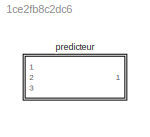
MODEL slx_1ce2fb8c2dc6
KIND model
CONFIG AbsTol = auto
CONFIG FixedStep = auto
CONFIG MaxStep = auto
CONFIG MinStep = auto
CONFIG RelTol = 1e-3
CONFIG SampleTimeConstraint = Unconstrained
CONFIG Solver = ode45
CONFIG SolverMode = Auto
CONFIG SolverName = ode45
CONFIG StartTime = 0.0
CONFIG StopTime = 10.0
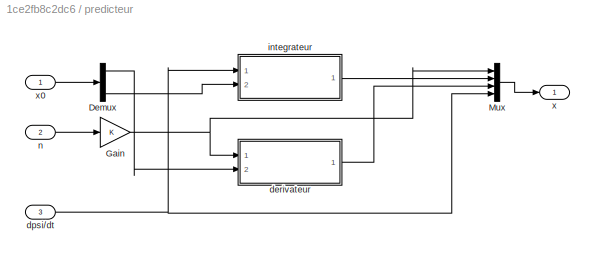
BLOCK [SubSystem] predicteur
  Ports = [3, 1]
  RequestExecContextInheritance = off
  TreatAsAtomicUnit = on
BLOCK [Demux] predicteur/Demux
  DisplayOption = bar
  Ports = [1, 4]
BLOCK [Gain] predicteur/Gain
  Gain = K
  OutDataTypeStr = Inherit: Inherit via internal rule
  ParamDataTypeStr = Inherit: Inherit via internal rule
  SaturateOnIntegerOverflow = off
BLOCK [Mux] predicteur/Mux
  DisplayOption = bar
  Ports = [4, 1]
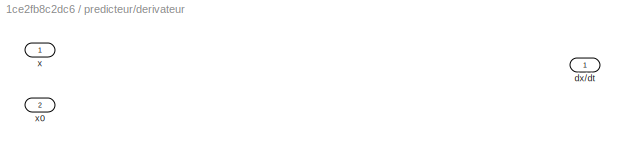
BLOCK [SubSystem] predicteur/derivateur
  Ports = [2, 1]
  RequestExecContextInheritance = off
  TreatAsAtomicUnit = on
BLOCK [Outport] predicteur/derivateur/dx//dt
  IconDisplay = Port number
BLOCK [Inport] predicteur/derivateur/x
  IconDisplay = Port number
BLOCK [Inport] predicteur/derivateur/x0
  IconDisplay = Port number
  Port = 2
BLOCK [Inport] predicteur/dpsi//dt
  IconDisplay = Port number
  Port = 3
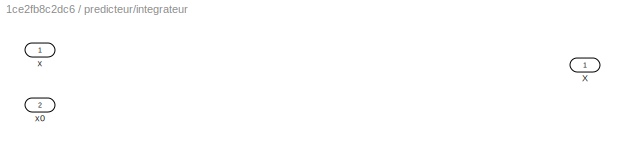
BLOCK [SubSystem] predicteur/integrateur
  Ports = [2, 1]
  RequestExecContextInheritance = off
  TreatAsAtomicUnit = on
BLOCK [Outport] predicteur/integrateur/X
  IconDisplay = Port number
BLOCK [Inport] predicteur/integrateur/x
  IconDisplay = Port number
BLOCK [Inport] predicteur/integrateur/x0
  IconDisplay = Port number
  Port = 2
BLOCK [Inport] predicteur/n
  IconDisplay = Port number
  Port = 2
BLOCK [Outport] predicteur/x
  IconDisplay = Port number
BLOCK [Inport] predicteur/x0
  IconDisplay = Port number
LINE predicteur/Demux:1 -> predicteur/derivateur:2
LINE predicteur/Demux:4 -> predicteur/integrateur:2
NET predicteur/Gain:1 -> predicteur/Mux:1, predicteur/derivateur:1
LINE predicteur/Mux:1 -> predicteur/x:1
LINE predicteur/derivateur:1 -> predicteur/Mux:3
NET predicteur/dpsi//dt:1 -> predicteur/Mux:4, predicteur/integrateur:1
LINE predicteur/integrateur:1 -> predicteur/Mux:2
LINE predicteur/n:1 -> predicteur/Gain:1
LINE predicteur/x0:1 -> predicteur/Demux:1
note: NET lines group one-source signal fan-out (src -> all destinations, sorted); 1:1 wires keep LINE
